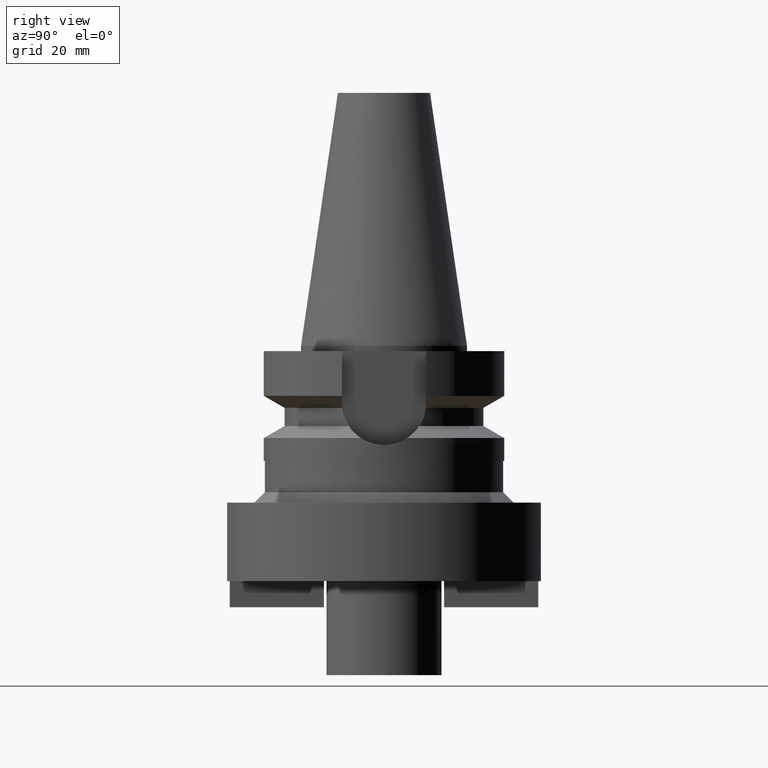
[diagram: clean part render]
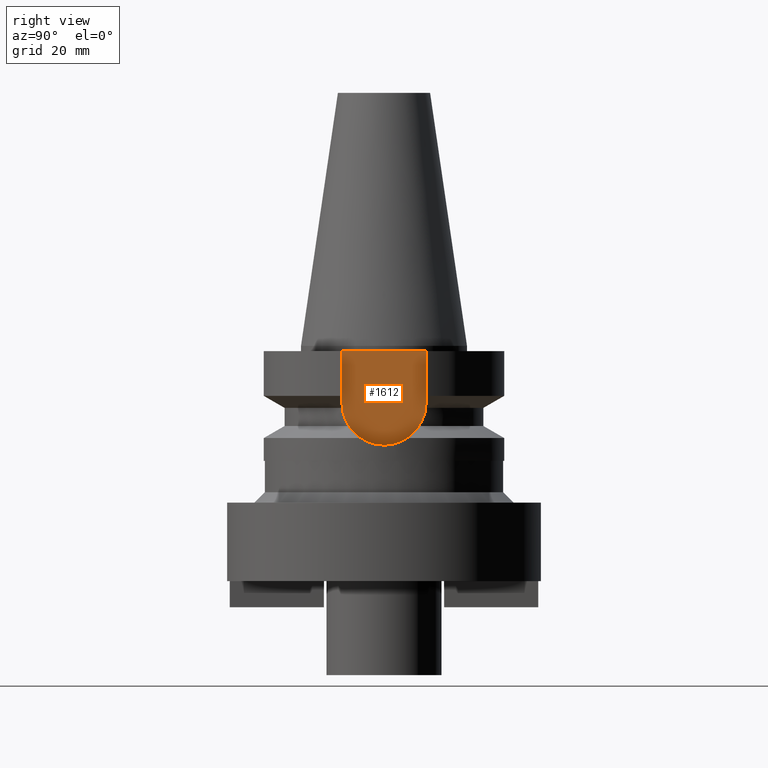
[diagram: same view with one face highlighted and labeled with its STEP entity id]
A machine part, right view. The second image highlights one B-rep face of the part: STEP entity #1612.
In plain terms, the highlighted planar face has unit normal (1, 0, 0).
Its self-contained STEP definition (entity closure, byte-faithful):
#124=DIRECTION('',(0.E0,-1.E0,0.E0));
#125=VECTOR('',#124,1.61E1);
#126=CARTESIAN_POINT('',(1.63E1,8.05E0,-1.E0));
#127=LINE('',#126,#125);
#293=DIRECTION('',(0.E0,0.E0,-1.E0));
#294=VECTOR('',#293,9.95E0);
#295=CARTESIAN_POINT('',(1.63E1,8.05E0,-1.E0));
#296=LINE('',#295,#294);
#300=CARTESIAN_POINT('',(1.63E1,0.E0,-1.095E1));
#301=DIRECTION('',(-1.E0,0.E0,0.E0));
#302=DIRECTION('',(0.E0,1.E0,0.E0));
#303=AXIS2_PLACEMENT_3D('',#300,#301,#302);
#308=CARTESIAN_POINT('',(1.63E1,0.E0,-1.095E1));
#309=DIRECTION('',(-1.E0,0.E0,0.E0));
#310=DIRECTION('',(0.E0,0.E0,-1.E0));
#311=AXIS2_PLACEMENT_3D('',#308,#309,#310);
#316=DIRECTION('',(0.E0,0.E0,1.E0));
#317=VECTOR('',#316,9.95E0);
#318=CARTESIAN_POINT('',(1.63E1,-8.05E0,-1.095E1));
#319=LINE('',#318,#317);
#1319=CARTESIAN_POINT('',(1.63E1,-8.05E0,-1.095E1));
#1320=VERTEX_POINT('',#1319);
#1321=CARTESIAN_POINT('',(1.63E1,0.E0,-1.9E1));
#1322=VERTEX_POINT('',#1321);
#1323=CARTESIAN_POINT('',(1.63E1,8.05E0,-1.095E1));
#1324=VERTEX_POINT('',#1323);
#1373=CARTESIAN_POINT('',(1.63E1,8.05E0,-1.E0));
#1374=VERTEX_POINT('',#1373);
#1375=CARTESIAN_POINT('',(1.63E1,-8.05E0,-1.E0));
#1376=VERTEX_POINT('',#1375);
#1597=CARTESIAN_POINT('',(1.63E1,0.E0,0.E0));
#1598=DIRECTION('',(1.E0,0.E0,0.E0));
#1599=DIRECTION('',(0.E0,0.E0,-1.E0));
#1600=AXIS2_PLACEMENT_3D('',#1597,#1598,#1599);
#1601=PLANE('',#1600);
#1602=ORIENTED_EDGE('',*,*,#1494,.F.);
#1604=ORIENTED_EDGE('',*,*,#1603,.T.);
#1606=ORIENTED_EDGE('',*,*,#1605,.T.);
#1608=ORIENTED_EDGE('',*,*,#1607,.T.);
#1609=ORIENTED_EDGE('',*,*,#1590,.T.);
#1610=EDGE_LOOP('',(#1602,#1604,#1606,#1608,#1609));
#1611=FACE_OUTER_BOUND('',#1610,.F.);
#304=CIRCLE('',#303,8.05E0);
#312=CIRCLE('',#311,8.05E0);
#1494=EDGE_CURVE('',#1374,#1376,#127,.T.);
#1590=EDGE_CURVE('',#1320,#1376,#319,.T.);
#1603=EDGE_CURVE('',#1374,#1324,#296,.T.);
#1605=EDGE_CURVE('',#1324,#1322,#304,.T.);
#1607=EDGE_CURVE('',#1322,#1320,#312,.T.);
#1612=ADVANCED_FACE('',(#1611),#1601,.T.);